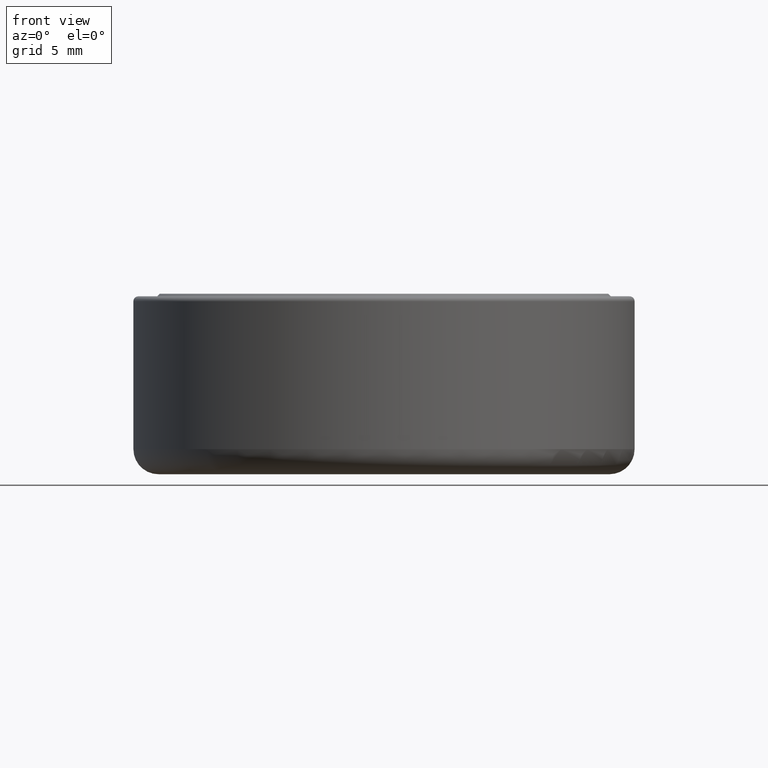
[diagram: clean part render]
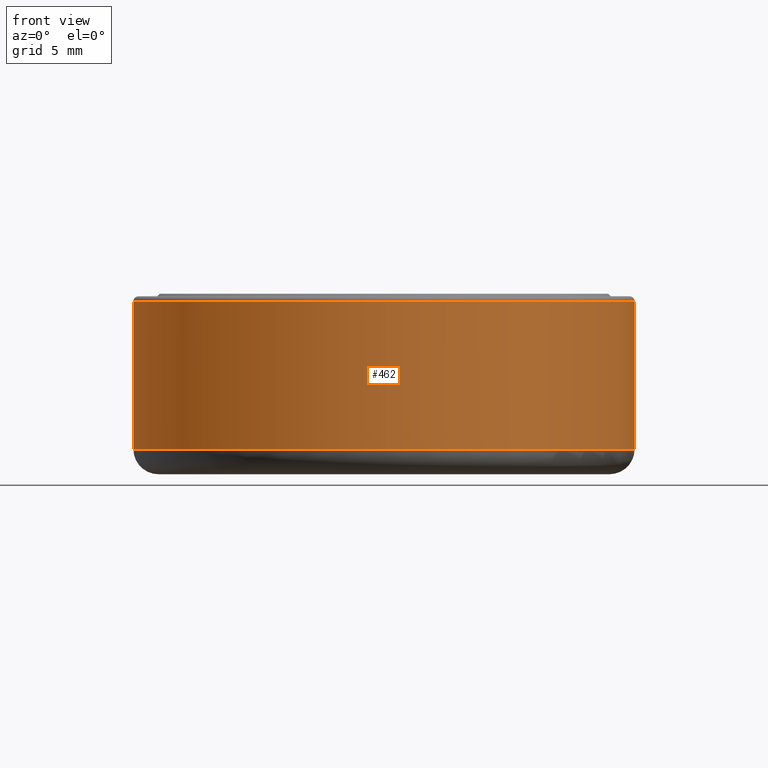
[diagram: same view with one face highlighted and labeled with its STEP entity id]
A machine part, front view. The second image highlights one B-rep face of the part: STEP entity #462.
In plain terms, the highlighted cylindrical surface (bore or boss wall) has radius 10 mm, axis along (-0, -0, 1).
Its self-contained STEP definition (entity closure, byte-faithful):
#45 = CYLINDRICAL_SURFACE ( 'NONE', #591, 10.00000000000000000 ) ;
#49 = CARTESIAN_POINT ( 'NONE',  ( -10.00000000000000000, 0.0000000000000000000, 3.299999999999999800 ) ) ;
#64 = DIRECTION ( 'NONE',  ( -0.0000000000000000000, -0.0000000000000000000, 1.000000000000000000 ) ) ;
#71 = DIRECTION ( 'NONE',  ( 0.0000000000000000000, 0.0000000000000000000, -1.000000000000000000 ) ) ;
#105 = CARTESIAN_POINT ( 'NONE',  ( 10.00000000000000000, 0.0000000000000000000, -2.600000000000000100 ) ) ;
#136 = EDGE_LOOP ( 'NONE', ( #301 ) ) ;
#138 = CARTESIAN_POINT ( 'NONE',  ( 0.0000000000000000000, 0.0000000000000000000, 3.299999999999999800 ) ) ;
#182 = FACE_OUTER_BOUND ( 'NONE', #588, .T. ) ;
#190 = CARTESIAN_POINT ( 'NONE',  ( 0.0000000000000000000, 0.0000000000000000000, 0.0000000000000000000 ) ) ;
#224 = ORIENTED_EDGE ( 'NONE', *, *, #356, .T. ) ;
#241 = AXIS2_PLACEMENT_3D ( 'NONE', #138, #71, #625 ) ;
#247 = DIRECTION ( 'NONE',  ( 1.000000000000000000, 0.0000000000000000000, 0.0000000000000000000 ) ) ;
#277 = EDGE_CURVE ( 'NONE', #619, #619, #291, .T. ) ;
#291 = CIRCLE ( 'NONE', #241, 10.00000000000000000 ) ;
#301 = ORIENTED_EDGE ( 'NONE', *, *, #277, .T. ) ;
#308 = DIRECTION ( 'NONE',  ( 1.000000000000000000, 0.0000000000000000000, 0.0000000000000000000 ) ) ;
#356 = EDGE_CURVE ( 'NONE', #446, #446, #707, .T. ) ;
#446 = VERTEX_POINT ( 'NONE', #105 ) ;
#462 = ADVANCED_FACE ( 'NONE', ( #512, #182 ), #45, .T. ) ;
#512 = FACE_OUTER_BOUND ( 'NONE', #136, .T. ) ;
#554 = CARTESIAN_POINT ( 'NONE',  ( 0.0000000000000000000, 0.0000000000000000000, -2.600000000000000100 ) ) ;
#588 = EDGE_LOOP ( 'NONE', ( #224 ) ) ;
#591 = AXIS2_PLACEMENT_3D ( 'NONE', #190, #64, #308 ) ;
#619 = VERTEX_POINT ( 'NONE', #49 ) ;
#625 = DIRECTION ( 'NONE',  ( -1.000000000000000000, 0.0000000000000000000, 0.0000000000000000000 ) ) ;
#707 = CIRCLE ( 'NONE', #711, 10.00000000000000000 ) ;
#711 = AXIS2_PLACEMENT_3D ( 'NONE', #554, #727, #247 ) ;
#727 = DIRECTION ( 'NONE',  ( -0.0000000000000000000, -0.0000000000000000000, 1.000000000000000000 ) ) ;